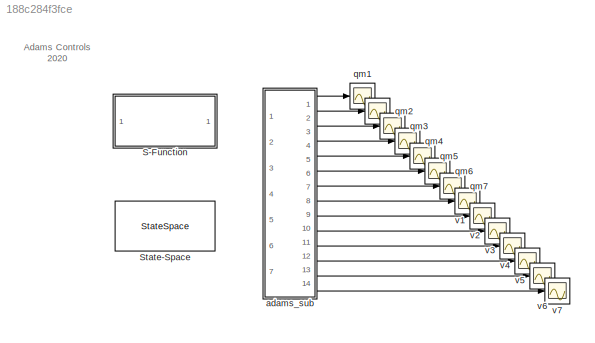
MODEL slx_188c284f3fce
KIND model
CONFIG AbsTol = 1e-6
CONFIG EnableMultiTasking = off
CONFIG FixedStep = auto
CONFIG MaxStep = auto
CONFIG MinStep = auto
CONFIG RelTol = 1e-3
CONFIG SampleTimeConstraint = Unconstrained
CONFIG Solver = ode45
CONFIG SolverName = ode45
CONFIG StartTime = 0.0
CONFIG StopTime = 1.0
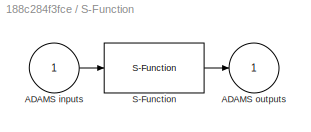
BLOCK [SubSystem] S-Function
  InitFcn = clear mex
  LoadFcn = %check based on dialog box setting for when setting by popup menu                                             \nif exist('ADAMS_solver_type')                                                                                 \n  if strcmp(ADAMS_solver_type,'C++')                                                                          \n    set_param(gcb,'exetyp','C++');                                 ...<+4486ch>
  OpenFcn = open_system(gcb,'mask')                                                                                                                          \nif not(exist('set_some_params_states'))                                                                                                          \n                                                                                                            ...<+625ch>
  Ports = [1, 1]
  RequestExecContextInheritance = off
BLOCK [Inport] S-Function/ADAMS inputs
  IconDisplay = Port number
BLOCK [Outport] S-Function/ADAMS outputs
  IconDisplay = Port number
  InitialOutput = 0
BLOCK [S-Function] S-Function/S-Function
  EnableBusSupport = off
  FunctionName = adams_plant
  Parameters = exevie,exesol,stat,outfil,nampre,o_rate,nam_in,namout,dft,modsim,modani,dt_out,inicmd,exetyp,comtyp,ada_host, workdir,pin_interp_order,pout_extrap_order,pin_extrap_order,pout_interp_order,simulink_lead_cosim
  Ports = [1, 1]
  SFcnIsStateOwnerBlock = off
  SFunctionDeploymentMode = off
  StopFcn = clear mex
BLOCK [StateSpace] State-Space
  A = ADAMS_a
  B = ADAMS_b
  C = ADAMS_c
  D = ADAMS_d
  InitialCondition = 0
  Ports = [1, 1]
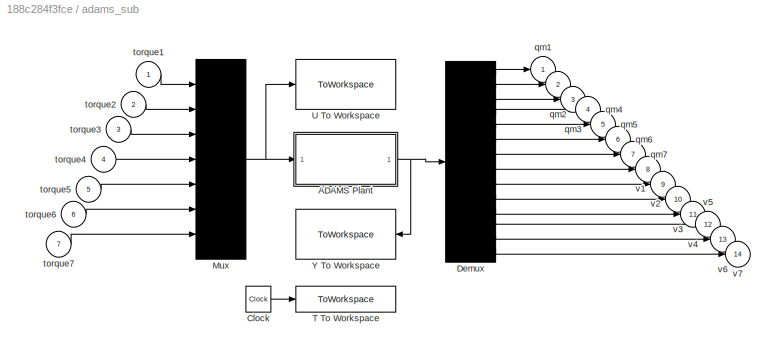
BLOCK [SubSystem] adams_sub
  Ports = [7, 14]
  RequestExecContextInheritance = off
  ShowPortLabels = none
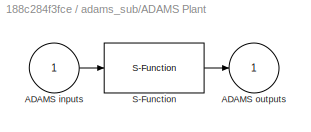
BLOCK [SubSystem] adams_sub/ADAMS Plant
  InitFcn = clear mex
  LoadFcn = %check based on dialog box setting for when setting by popup menu                                             \nif exist('ADAMS_solver_type')                                                                                 \n  if strcmp(ADAMS_solver_type,'C++')                                                                          \n    set_param(gcb,'exetyp','C++');                                 ...<+4486ch>
  OpenFcn = open_system(gcb,'mask')                                                                                                                          \nif not(exist('set_some_params_states'))                                                                                                          \n                                                                                                            ...<+625ch>
  Ports = [1, 1]
  RequestExecContextInheritance = off
BLOCK [Inport] adams_sub/ADAMS Plant/ADAMS inputs
  IconDisplay = Port number
BLOCK [Outport] adams_sub/ADAMS Plant/ADAMS outputs
  IconDisplay = Port number
  InitialOutput = 0
BLOCK [S-Function] adams_sub/ADAMS Plant/S-Function
  EnableBusSupport = off
  FunctionName = adams_plant
  Parameters = exevie,exesol,stat,outfil,nampre,o_rate,nam_in,namout,dft,modsim,modani,dt_out,inicmd,exetyp,comtyp,ada_host, workdir,pin_interp_order,pout_extrap_order,pin_extrap_order,pout_interp_order,simulink_lead_cosim
  Ports = [1, 1]
  SFcnIsStateOwnerBlock = off
  SFunctionDeploymentMode = off
  StopFcn = clear mex
BLOCK [Clock] adams_sub/Clock
BLOCK [Demux] adams_sub/Demux
  Outputs = 14
  Ports = [1, 14]
BLOCK [Mux] adams_sub/Mux
  Inputs = 7
  Ports = [7, 1]
BLOCK [ToWorkspace] adams_sub/T To Workspace
  MaxDataPoints = 100000
  Ports = [1]
  VariableName = ADAMS_tout
BLOCK [ToWorkspace] adams_sub/U To Workspace
  MaxDataPoints = 100000
  Ports = [1]
  VariableName = ADAMS_uout
BLOCK [ToWorkspace] adams_sub/Y To Workspace
  MaxDataPoints = 100000
  Ports = [1]
  VariableName = ADAMS_yout
BLOCK [Outport] adams_sub/qm1
  IconDisplay = Port number
BLOCK [Outport] adams_sub/qm2
  IconDisplay = Port number
  Port = 2
BLOCK [Outport] adams_sub/qm3
  IconDisplay = Port number
  Port = 3
BLOCK [Outport] adams_sub/qm4
  IconDisplay = Port number
  Port = 4
BLOCK [Outport] adams_sub/qm5
  IconDisplay = Port number
  Port = 5
BLOCK [Outport] adams_sub/qm6
  IconDisplay = Port number
  Port = 6
BLOCK [Outport] adams_sub/qm7
  IconDisplay = Port number
  Port = 7
BLOCK [Inport] adams_sub/torque1
  IconDisplay = Port number
BLOCK [Inport] adams_sub/torque2
  IconDisplay = Port number
  Port = 2
BLOCK [Inport] adams_sub/torque3
  IconDisplay = Port number
  Port = 3
BLOCK [Inport] adams_sub/torque4
  IconDisplay = Port number
  Port = 4
BLOCK [Inport] adams_sub/torque5
  IconDisplay = Port number
  Port = 5
BLOCK [Inport] adams_sub/torque6
  IconDisplay = Port number
  Port = 6
BLOCK [Inport] adams_sub/torque7
  IconDisplay = Port number
  Port = 7
BLOCK [Outport] adams_sub/v1 
  IconDisplay = Port number
  Port = 8
BLOCK [Outport] adams_sub/v2 
  IconDisplay = Port number
  Port = 9
BLOCK [Outport] adams_sub/v3 
  IconDisplay = Port number
  Port = 10
BLOCK [Outport] adams_sub/v4 
  IconDisplay = Port number
  Port = 11
BLOCK [Outport] adams_sub/v5 
  IconDisplay = Port number
  Port = 12
BLOCK [Outport] adams_sub/v6 
  IconDisplay = Port number
  Port = 13
BLOCK [Outport] adams_sub/v7 
  IconDisplay = Port number
  Port = 14
BLOCK [Scope] qm1
  Floating = off
  NumInputPorts = 1
  Ports = [1]
BLOCK [Scope] qm2
  Floating = off
  NumInputPorts = 1
  Ports = [1]
BLOCK [Scope] qm3
  Floating = off
  NumInputPorts = 1
  Ports = [1]
BLOCK [Scope] qm4
  Floating = off
  NumInputPorts = 1
  Ports = [1]
BLOCK [Scope] qm5
  Floating = off
  NumInputPorts = 1
  Ports = [1]
BLOCK [Scope] qm6
  Floating = off
  NumInputPorts = 1
  Ports = [1]
BLOCK [Scope] qm7
  Floating = off
  NumInputPorts = 1
  Ports = [1]
BLOCK [Scope] v1 
  Floating = off
  NumInputPorts = 1
  Ports = [1]
BLOCK [Scope] v2 
  Floating = off
  NumInputPorts = 1
  Ports = [1]
BLOCK [Scope] v3 
  Floating = off
  NumInputPorts = 1
  Ports = [1]
BLOCK [Scope] v4 
  Floating = off
  NumInputPorts = 1
  Ports = [1]
BLOCK [Scope] v5 
  Floating = off
  NumInputPorts = 1
  Ports = [1]
BLOCK [Scope] v6 
  Floating = off
  NumInputPorts = 1
  Ports = [1]
BLOCK [Scope] v7 
  Floating = off
  NumInputPorts = 1
  Ports = [1]
ANNOTATION (root): Adams Controls 2020
LINE S-Function/ADAMS inputs:1 -> S-Function/S-Function:1
LINE S-Function/S-Function:1 -> S-Function/ADAMS outputs:1
LINE adams_sub/ADAMS Plant/ADAMS inputs:1 -> adams_sub/ADAMS Plant/S-Function:1
LINE adams_sub/ADAMS Plant/S-Function:1 -> adams_sub/ADAMS Plant/ADAMS outputs:1
NET adams_sub/ADAMS Plant:1 -> adams_sub/Demux:1, adams_sub/Y To Workspace:1
LINE adams_sub/Clock:1 -> adams_sub/T To Workspace:1
LINE adams_sub/Demux:1 -> adams_sub/qm1:1
LINE adams_sub/Demux:10 -> adams_sub/v3 :1
LINE adams_sub/Demux:11 -> adams_sub/v4 :1
LINE adams_sub/Demux:12 -> adams_sub/v5 :1
LINE adams_sub/Demux:13 -> adams_sub/v6 :1
LINE adams_sub/Demux:14 -> adams_sub/v7 :1
LINE adams_sub/Demux:2 -> adams_sub/qm2:1
LINE adams_sub/Demux:3 -> adams_sub/qm3:1
LINE adams_sub/Demux:4 -> adams_sub/qm4:1
LINE adams_sub/Demux:5 -> adams_sub/qm5:1
LINE adams_sub/Demux:6 -> adams_sub/qm6:1
LINE adams_sub/Demux:7 -> adams_sub/qm7:1
LINE adams_sub/Demux:8 -> adams_sub/v1 :1
LINE adams_sub/Demux:9 -> adams_sub/v2 :1
NET adams_sub/Mux:1 -> adams_sub/ADAMS Plant:1, adams_sub/U To Workspace:1
LINE adams_sub/torque1:1 -> adams_sub/Mux:1
LINE adams_sub/torque2:1 -> adams_sub/Mux:2
LINE adams_sub/torque3:1 -> adams_sub/Mux:3
LINE adams_sub/torque4:1 -> adams_sub/Mux:4
LINE adams_sub/torque5:1 -> adams_sub/Mux:5
LINE adams_sub/torque6:1 -> adams_sub/Mux:6
LINE adams_sub/torque7:1 -> adams_sub/Mux:7
LINE adams_sub:1 -> qm1:1
LINE adams_sub:10 -> v3 :1
LINE adams_sub:11 -> v4 :1
LINE adams_sub:12 -> v5 :1
LINE adams_sub:13 -> v6 :1
LINE adams_sub:14 -> v7 :1
LINE adams_sub:2 -> qm2:1
LINE adams_sub:3 -> qm3:1
LINE adams_sub:4 -> qm4:1
LINE adams_sub:5 -> qm5:1
LINE adams_sub:6 -> qm6:1
LINE adams_sub:7 -> qm7:1
LINE adams_sub:8 -> v1 :1
LINE adams_sub:9 -> v2 :1
note: NET lines group one-source signal fan-out (src -> all destinations, sorted); 1:1 wires keep LINE
